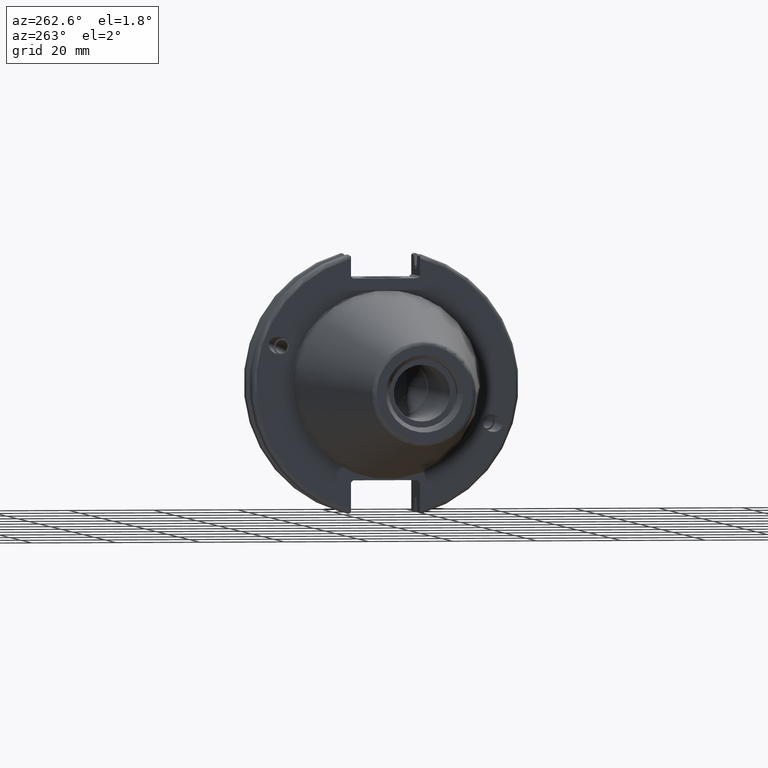
[diagram: clean part render]
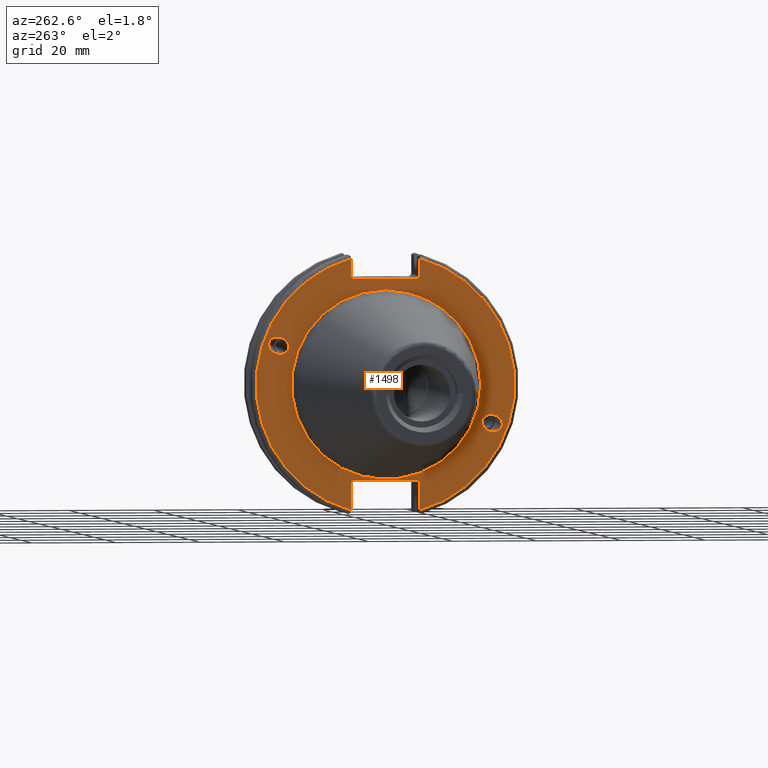
[diagram: same view with one face highlighted and labeled with its STEP entity id]
A machine part, auxiliary view. The second image highlights one B-rep face of the part: STEP entity #1498.
In plain terms, the highlighted planar face has unit normal (-1, 0, 0).
Its self-contained STEP definition (entity closure, byte-faithful):
#39=ELLIPSE('',#1617,2.44154917752292,2.00000000000001);
#48=ELLIPSE('',#1660,2.44154917752292,2.00000000000001);
#115=FACE_BOUND('',#492,.T.);
#116=FACE_BOUND('',#493,.T.);
#117=FACE_BOUND('',#494,.T.);
#131=PLANE('',#1670);
#203=LINE('',#2652,#297);
#204=LINE('',#2654,#298);
#205=LINE('',#2656,#299);
#206=LINE('',#2658,#300);
#207=LINE('',#2660,#301);
#208=LINE('',#2664,#302);
#209=LINE('',#2666,#303);
#210=LINE('',#2668,#304);
#211=LINE('',#2670,#305);
#212=LINE('',#2671,#306);
#297=VECTOR('',#2001,10.);
#298=VECTOR('',#2002,10.);
#299=VECTOR('',#2003,10.);
#300=VECTOR('',#2004,10.);
#301=VECTOR('',#2005,10.);
#302=VECTOR('',#2008,10.);
#303=VECTOR('',#2009,10.);
#304=VECTOR('',#2010,10.);
#305=VECTOR('',#2011,10.);
#306=VECTOR('',#2012,10.);
#398=FACE_OUTER_BOUND('',#491,.T.);
#491=EDGE_LOOP('',(#1211,#1212,#1213,#1214,#1215,#1216,#1217,#1218,#1219,
#1220,#1221,#1222));
#492=EDGE_LOOP('',(#1223));
#493=EDGE_LOOP('',(#1224));
#494=EDGE_LOOP('',(#1225));
#586=CIRCLE('',#1668,22.3);
#588=CIRCLE('',#1671,30.75);
#589=CIRCLE('',#1672,30.75);
#664=VERTEX_POINT('',#2445);
#704=VERTEX_POINT('',#2628);
#709=VERTEX_POINT('',#2643);
#710=VERTEX_POINT('',#2648);
#711=VERTEX_POINT('',#2649);
#712=VERTEX_POINT('',#2651);
#713=VERTEX_POINT('',#2653);
#714=VERTEX_POINT('',#2655);
#715=VERTEX_POINT('',#2657);
#716=VERTEX_POINT('',#2659);
#717=VERTEX_POINT('',#2661);
#718=VERTEX_POINT('',#2663);
#719=VERTEX_POINT('',#2665);
#720=VERTEX_POINT('',#2667);
#721=VERTEX_POINT('',#2669);
#831=EDGE_CURVE('',#664,#664,#39,.T.);
#887=EDGE_CURVE('',#704,#704,#48,.T.);
#894=EDGE_CURVE('',#709,#709,#586,.T.);
#896=EDGE_CURVE('',#710,#711,#588,.T.);
#897=EDGE_CURVE('',#710,#712,#203,.T.);
#898=EDGE_CURVE('',#713,#712,#204,.T.);
#899=EDGE_CURVE('',#713,#714,#205,.T.);
#900=EDGE_CURVE('',#715,#714,#206,.T.);
#901=EDGE_CURVE('',#715,#716,#207,.T.);
#902=EDGE_CURVE('',#717,#716,#589,.T.);
#903=EDGE_CURVE('',#717,#718,#208,.T.);
#904=EDGE_CURVE('',#719,#718,#209,.T.);
#905=EDGE_CURVE('',#719,#720,#210,.T.);
#906=EDGE_CURVE('',#721,#720,#211,.T.);
#907=EDGE_CURVE('',#721,#711,#212,.T.);
#1211=ORIENTED_EDGE('',*,*,#896,.F.);
#1212=ORIENTED_EDGE('',*,*,#897,.T.);
#1213=ORIENTED_EDGE('',*,*,#898,.F.);
#1214=ORIENTED_EDGE('',*,*,#899,.T.);
#1215=ORIENTED_EDGE('',*,*,#900,.F.);
#1216=ORIENTED_EDGE('',*,*,#901,.T.);
#1217=ORIENTED_EDGE('',*,*,#902,.F.);
#1218=ORIENTED_EDGE('',*,*,#903,.T.);
#1219=ORIENTED_EDGE('',*,*,#904,.F.);
#1220=ORIENTED_EDGE('',*,*,#905,.T.);
#1221=ORIENTED_EDGE('',*,*,#906,.F.);
#1222=ORIENTED_EDGE('',*,*,#907,.T.);
#1223=ORIENTED_EDGE('',*,*,#831,.T.);
#1224=ORIENTED_EDGE('',*,*,#887,.T.);
#1225=ORIENTED_EDGE('',*,*,#894,.F.);
#1498=ADVANCED_FACE('',(#398,#115,#116,#117),#131,.T.);
#1617=AXIS2_PLACEMENT_3D('',#2447,#1872,#1873);
#1660=AXIS2_PLACEMENT_3D('',#2630,#1975,#1976);
#1668=AXIS2_PLACEMENT_3D('',#2645,#1993,#1994);
#1670=AXIS2_PLACEMENT_3D('',#2647,#1997,#1998);
#1671=AXIS2_PLACEMENT_3D('',#2650,#1999,#2000);
#1672=AXIS2_PLACEMENT_3D('',#2662,#2006,#2007);
#1872=DIRECTION('center_axis',(1.,0.,0.));
#1873=DIRECTION('ref_axis',(5.68400912649E-17,-0.939692620785909,-0.342020143325667));
#1975=DIRECTION('center_axis',(1.,0.,0.));
#1976=DIRECTION('ref_axis',(5.68400912649E-17,0.939692620785909,0.342020143325667));
#1993=DIRECTION('center_axis',(-1.,0.,0.));
#1994=DIRECTION('ref_axis',(0.,-1.,1.83697019872103E-16));
#1997=DIRECTION('center_axis',(-1.,0.,0.));
#1998=DIRECTION('ref_axis',(0.,0.,1.));
#1999=DIRECTION('center_axis',(1.,0.,0.));
#2000=DIRECTION('ref_axis',(0.,-1.,1.60812264967664E-16));
#2001=DIRECTION('',(0.,0.,-1.));
#2002=DIRECTION('',(0.,-0.70710678118655,0.707106781186545));
#2003=DIRECTION('',(0.,1.,0.));
#2004=DIRECTION('',(0.,-0.707106781186549,-0.707106781186546));
#2005=DIRECTION('',(0.,0.,1.));
#2006=DIRECTION('center_axis',(1.,0.,0.));
#2007=DIRECTION('ref_axis',(0.,1.,1.60812264967664E-16));
#2008=DIRECTION('',(0.,0.,1.));
#2009=DIRECTION('',(0.,0.707106781186549,-0.707106781186546));
#2010=DIRECTION('',(0.,-1.,0.));
#2011=DIRECTION('',(0.,0.707106781186549,0.707106781186546));
#2012=DIRECTION('',(0.,0.,-1.));
#2445=CARTESIAN_POINT('',(3.175,-23.0773950158153,-8.39948487016));
#2447=CARTESIAN_POINT('Origin',(3.175,-25.3717007612195,-9.23454386979305));
#2628=CARTESIAN_POINT('',(3.175,23.0773950158153,8.39948487016));
#2630=CARTESIAN_POINT('Origin',(3.175,25.3717007612195,9.23454386979306));
#2643=CARTESIAN_POINT('',(3.175,-2.7309623620986E-15,22.3));
#2645=CARTESIAN_POINT('Origin',(3.175,0.,0.));
#2647=CARTESIAN_POINT('Origin',(3.175,31.75,0.));
#2648=CARTESIAN_POINT('',(3.175,-8.18999999999999,29.6392712461019));
#2649=CARTESIAN_POINT('',(3.175,-8.19,-29.6392712461019));
#2650=CARTESIAN_POINT('Origin',(3.175,0.,0.));
#2651=CARTESIAN_POINT('',(3.175,-8.18999999999999,25.5));
#2652=CARTESIAN_POINT('',(3.175,-8.18999999999999,12.5));
#2653=CARTESIAN_POINT('',(3.175,-7.68999999999999,25.));
#2654=CARTESIAN_POINT('',(3.175,8.29500000000007,9.01500000000004));
#2655=CARTESIAN_POINT('',(3.175,7.69,25.));
#2656=CARTESIAN_POINT('',(3.175,15.875,25.));
#2657=CARTESIAN_POINT('',(3.175,8.19,25.5));
#2658=CARTESIAN_POINT('',(3.175,7.58000000000002,24.89));
#2659=CARTESIAN_POINT('',(3.175,8.19,29.6392712461019));
#2660=CARTESIAN_POINT('',(3.175,8.19,12.5));
#2661=CARTESIAN_POINT('',(3.175,8.18999999999999,-29.6392712461019));
#2662=CARTESIAN_POINT('Origin',(3.175,0.,0.));
#2663=CARTESIAN_POINT('',(3.175,8.18999999999999,-23.1));
#2664=CARTESIAN_POINT('',(3.175,8.18999999999999,-11.3));
#2665=CARTESIAN_POINT('',(3.175,7.69,-22.6));
#2666=CARTESIAN_POINT('',(3.175,8.18000000000002,-23.09));
#2667=CARTESIAN_POINT('',(3.175,-7.69,-22.6));
#2668=CARTESIAN_POINT('',(3.175,15.875,-22.6));
#2669=CARTESIAN_POINT('',(3.175,-8.19,-23.1));
#2670=CARTESIAN_POINT('',(3.175,7.69500000000004,-7.21500000000002));
#2671=CARTESIAN_POINT('',(3.175,-8.19,-11.3));